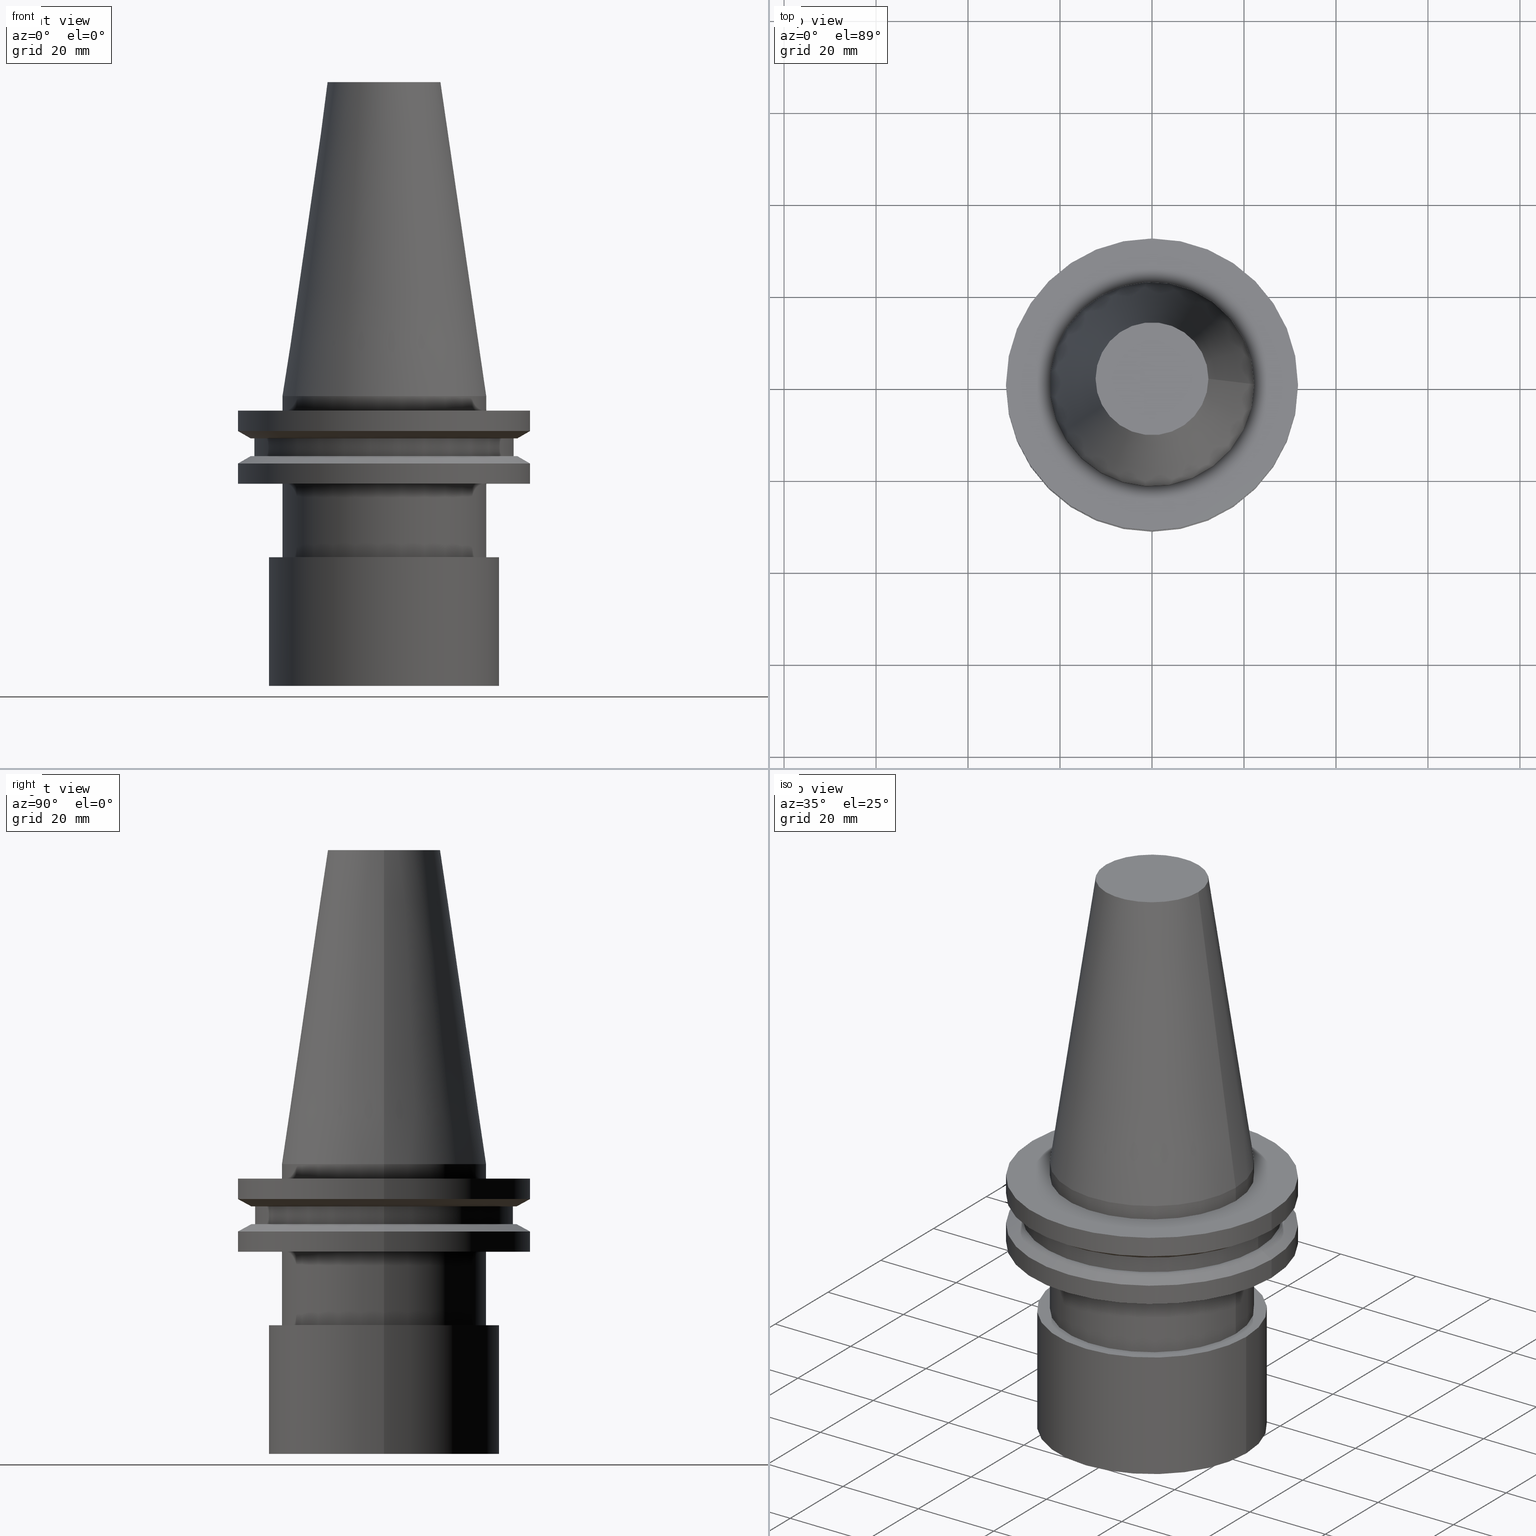
[diagram: canonical four-view strip — front | top / right | iso, engineering-drawing reading convention]
A machine part, canonical four-view strip (front | top / right | iso — engineering-drawing reading convention). The complete STEP part file that produces these views, byte-faithful:
ISO-10303-21;
HEADER;
FILE_DESCRIPTION (( 'STEP AP203' ),
    '1' );
FILE_NAME ('11_326_451.stp',
    '2022-03-09T14:21:47',
    ( '' ),
    ( '' ),
    'SwSTEP 2.0',
    'SolidWorks 2021',
    '' );
FILE_SCHEMA (( 'CONFIG_CONTROL_DESIGN' ));
ENDSEC;

DATA;
#1 = PLANE ( 'NONE',  #310 ) ;
#2 = CARTESIAN_POINT ( 'NONE',  ( 0.000000000000000000, 0.000000000000000000, -9.205000000000005400 ) ) ;
#3 =( NAMED_UNIT ( * ) PLANE_ANGLE_UNIT ( ) SI_UNIT ( $, .RADIAN. ) );
#4 = ADVANCED_FACE ( 'NONE', ( #382, #308 ), #211, .T. ) ;
#5 = CARTESIAN_POINT ( 'NONE',  ( 0.000000000000000000, 0.000000000000000000, 68.25000000000000000 ) ) ;
#6 = AXIS2_PLACEMENT_3D ( 'NONE', #240, #208, #359 ) ;
#7 = DATE_AND_TIME ( #388, #171 ) ;
#8 = DIRECTION ( 'NONE',  ( -0.000000000000000000, -0.000000000000000000, 1.000000000000000000 ) ) ;
#9 = EDGE_LOOP ( 'NONE', ( #45 ) ) ;
#10 = PERSON_AND_ORGANIZATION ( #97, #138 ) ;
#11 = ORIENTED_EDGE ( 'NONE', *, *, #318, .F. ) ;
#12 = APPROVAL ( #350, 'UNSPECIFIED' ) ;
#13 = APPROVAL_ROLE ( '' ) ;
#14 = AXIS2_PLACEMENT_3D ( 'NONE', #398, #372, #152 ) ;
#15 = ORIENTED_EDGE ( 'NONE', *, *, #36, .T. ) ;
#16 = PERSON_AND_ORGANIZATION ( #97, #138 ) ;
#17 = AXIS2_PLACEMENT_3D ( 'NONE', #366, #118, #220 ) ;
#18 = DIRECTION ( 'NONE',  ( -0.000000000000000000, -0.000000000000000000, 1.000000000000000000 ) ) ;
#19 = ADVANCED_FACE ( 'NONE', ( #28, #124 ), #35, .T. ) ;
#20 = FACE_OUTER_BOUND ( 'NONE', #70, .T. ) ;
#21 = AXIS2_PLACEMENT_3D ( 'NONE', #215, #157, #193 ) ;
#22 = CIRCLE ( 'NONE', #127, 28.97919780457007732 ) ;
#23 = CC_DESIGN_SECURITY_CLASSIFICATION ( #253, ( #114 ) ) ;
#24 = PLANE ( 'NONE',  #128 ) ;
#25 = EDGE_LOOP ( 'NONE', ( #351 ) ) ;
#26 = PRODUCT_DEFINITION_SHAPE ( 'NONE', 'NONE',  #191 ) ;
#27 = VERTEX_POINT ( 'NONE', #339 ) ;
#28 = FACE_OUTER_BOUND ( 'NONE', #321, .T. ) ;
#29 = ADVANCED_FACE ( 'NONE', ( #155 ), #160, .F. ) ;
#30 = FACE_OUTER_BOUND ( 'NONE', #234, .T. ) ;
#31 = CYLINDRICAL_SURFACE ( 'NONE', #260, 25.00000000000000000 ) ;
#32 = PRODUCT_RELATED_PRODUCT_CATEGORY ( 'detail', '', ( #356 ) ) ;
#33 = UNCERTAINTY_MEASURE_WITH_UNIT (LENGTH_MEASURE( 1.000000000000000082E-05 ), #104, 'distance_accuracy_value', 'NONE');
#34 = DIRECTION ( 'NONE',  ( 0.000000000000000000, 0.000000000000000000, -1.000000000000000000 ) ) ;
#35 = CYLINDRICAL_SURFACE ( 'NONE', #21, 28.17999999999999972 ) ;
#36 = EDGE_CURVE ( 'NONE', #241, #241, #22, .T. ) ;
#37 =( NAMED_UNIT ( * ) SI_UNIT ( $, .STERADIAN. ) SOLID_ANGLE_UNIT ( ) );
#38 = FACE_OUTER_BOUND ( 'NONE', #190, .T. ) ;
#39 = APPLICATION_PROTOCOL_DEFINITION ( 'international standard', 'config_control_design', 1994, #391 ) ;
#40 = DIRECTION ( 'NONE',  ( 0.000000000000000000, -0.000000000000000000, 1.000000000000000000 ) ) ;
#41 = EDGE_LOOP ( 'NONE', ( #323 ) ) ;
#42 = AXIS2_PLACEMENT_3D ( 'NONE', #146, #142, #265 ) ;
#43 = CARTESIAN_POINT ( 'NONE',  ( 22.22500000000000142, 0.000000000000000000, -3.174999999999997158 ) ) ;
#44 = DESIGN_CONTEXT ( 'detailed design', #338, 'design' ) ;
#45 = ORIENTED_EDGE ( 'NONE', *, *, #36, .F. ) ;
#46 = EDGE_LOOP ( 'NONE', ( #380 ) ) ;
#47 = EDGE_LOOP ( 'NONE', ( #11 ) ) ;
#48 = APPROVAL_DATE_TIME ( #176, #12 ) ;
#49 = CARTESIAN_POINT ( 'NONE',  ( 0.000000000000000000, 0.000000000000000000, -19.04999999999999716 ) ) ;
#50 = APPROVAL_PERSON_ORGANIZATION ( #10, #116, #13 ) ;
#51 = EDGE_CURVE ( 'NONE', #159, #159, #136, .T. ) ;
#52 = DIRECTION ( 'NONE',  ( 1.000000000000000000, 0.000000000000000000, 0.000000000000000000 ) ) ;
#53 = APPROVAL_DATE_TIME ( #207, #396 ) ;
#54 = PLANE ( 'NONE',  #110 ) ;
#55 = DIRECTION ( 'NONE',  ( -1.000000000000000000, 0.000000000000000000, -0.000000000000000000 ) ) ;
#56 = CARTESIAN_POINT ( 'NONE',  ( 28.97919780457008088, 0.000000000000000000, -13.05499999999999794 ) ) ;
#57 = FACE_BOUND ( 'NONE', #163, .T. ) ;
#58 = CARTESIAN_POINT ( 'NONE',  ( 25.00000000000000000, 0.000000000000000000, -35.04999999999999716 ) ) ;
#59 = CC_DESIGN_DATE_AND_TIME_ASSIGNMENT ( #332, #364, ( #253 ) ) ;
#60 = FACE_OUTER_BOUND ( 'NONE', #229, .T. ) ;
#61 = DIRECTION ( 'NONE',  ( 0.000000000000000000, 0.000000000000000000, -1.000000000000000000 ) ) ;
#62 = CARTESIAN_POINT ( 'NONE',  ( 0.000000000000000000, 28.97919780457007732, -9.204999999999996518 ) ) ;
#63 = ADVANCED_FACE ( 'NONE', ( #131, #57 ), #95, .F. ) ;
#64 = AXIS2_PLACEMENT_3D ( 'NONE', #297, #111, #172 ) ;
#65 = AXIS2_PLACEMENT_3D ( 'NONE', #275, #303, #341 ) ;
#66 = CARTESIAN_POINT ( 'NONE',  ( 0.000000000000000000, 0.000000000000000000, -35.04999999999999716 ) ) ;
#67 = CC_DESIGN_DATE_AND_TIME_ASSIGNMENT ( #7, #130, ( #191 ) ) ;
#68 = DIRECTION ( 'NONE',  ( 1.000000000000000000, 0.000000000000000000, 0.000000000000000000 ) ) ;
#69 = CARTESIAN_POINT ( 'NONE',  ( 0.000000000000000000, 0.000000000000000000, -13.05499999999999794 ) ) ;
#70 = EDGE_LOOP ( 'NONE', ( #201 ) ) ;
#71 = CARTESIAN_POINT ( 'NONE',  ( 28.17999999999999972, 0.000000000000000000, -13.05499999999999794 ) ) ;
#72 = AXIS2_PLACEMENT_3D ( 'NONE', #375, #280, #126 ) ;
#73 = CARTESIAN_POINT ( 'NONE',  ( 22.22500000000000142, 0.000000000000000000, 0.000000000000000000 ) ) ;
#74 = EDGE_LOOP ( 'NONE', ( #112 ) ) ;
#75 = ADVANCED_FACE ( 'NONE', ( #60, #119 ), #31, .T. ) ;
#76 = AXIS2_PLACEMENT_3D ( 'NONE', #2, #373, #226 ) ;
#77 = ADVANCED_BREP_SHAPE_REPRESENTATION ( '11_326_451', ( #214, #358, #231 ), #175 ) ;
#78 = AXIS2_PLACEMENT_3D ( 'NONE', #362, #18, #236 ) ;
#79 = DIRECTION ( 'NONE',  ( -0.000000000000000000, -0.000000000000000000, 1.000000000000000000 ) ) ;
#80 = CC_DESIGN_APPROVAL ( #396, ( #253 ) ) ;
#81 = CYLINDRICAL_SURFACE ( 'NONE', #98, 31.75000000000000000 ) ;
#82 = CIRCLE ( 'NONE', #401, 22.22500000000000142 ) ;
#83 = CALENDAR_DATE ( 2022, 9, 3 ) ;
#84 = FACE_OUTER_BOUND ( 'NONE', #301, .T. ) ;
#85 = SHAPE_DEFINITION_REPRESENTATION ( #26, #77 ) ;
#86 = CARTESIAN_POINT ( 'NONE',  ( 0.000000000000000000, 0.000000000000000000, 68.25000000000000000 ) ) ;
#87 = EDGE_CURVE ( 'NONE', #120, #120, #185, .T. ) ;
#88 = DIRECTION ( 'NONE',  ( -1.000000000000000000, 0.000000000000000000, -0.000000000000000000 ) ) ;
#89 = CIRCLE ( 'NONE', #145, 22.22500000000000142 ) ;
#90 = DIRECTION ( 'NONE',  ( -0.000000000000000000, -0.000000000000000000, 1.000000000000000000 ) ) ;
#91 = DIRECTION ( 'NONE',  ( -0.000000000000000000, -0.000000000000000000, 1.000000000000000000 ) ) ;
#92 = FACE_OUTER_BOUND ( 'NONE', #134, .T. ) ;
#93 = DIRECTION ( 'NONE',  ( -0.000000000000000000, -0.000000000000000000, 1.000000000000000000 ) ) ;
#94 = FACE_OUTER_BOUND ( 'NONE', #137, .T. ) ;
#95 = PLANE ( 'NONE',  #144 ) ;
#96 = CC_DESIGN_PERSON_AND_ORGANIZATION_ASSIGNMENT ( #264, #292, ( #114 ) ) ;
#97 = PERSON ( 'UNSPECIFIED', 'UNSPECIFIED', 'UNSPECIFIED', ('UNSPECIFIED'), ('UNSPECIFIED'), ('UNSPECIFIED') ) ;
#98 = AXIS2_PLACEMENT_3D ( 'NONE', #202, #330, #52 ) ;
#99 = DIRECTION ( 'NONE',  ( -0.000000000000000000, -0.000000000000000000, 1.000000000000000000 ) ) ;
#100 = ORIENTED_EDGE ( 'NONE', *, *, #327, .F. ) ;
#101 = CARTESIAN_POINT ( 'NONE',  ( 31.75000000000000000, 0.000000000000000000, -14.65472339340266572 ) ) ;
#102 = ORIENTED_EDGE ( 'NONE', *, *, #400, .T. ) ;
#103 = ADVANCED_FACE ( 'NONE', ( #277, #403 ), #219, .F. ) ;
#104 =( LENGTH_UNIT ( ) NAMED_UNIT ( * ) SI_UNIT ( .MILLI., .METRE. ) );
#105 = APPLICATION_PROTOCOL_DEFINITION ( 'international standard', 'config_control_design', 1994, #338 ) ;
#106 = ORIENTED_EDGE ( 'NONE', *, *, #150, .F. ) ;
#107 = ADVANCED_FACE ( 'NONE', ( #348, #311 ), #238, .T. ) ;
#108 = ORIENTED_EDGE ( 'NONE', *, *, #272, .F. ) ;
#109 = AXIS2_PLACEMENT_3D ( 'NONE', #346, #91, #217 ) ;
#110 = AXIS2_PLACEMENT_3D ( 'NONE', #184, #178, #55 ) ;
#111 = DIRECTION ( 'NONE',  ( -0.000000000000000000, -0.000000000000000000, 1.000000000000000000 ) ) ;
#112 = ORIENTED_EDGE ( 'NONE', *, *, #272, .T. ) ;
#113 = CIRCLE ( 'NONE', #335, 28.97919780457008088 ) ;
#114 = PRODUCT_DEFINITION_FORMATION_WITH_SPECIFIED_SOURCE ( 'ANY', '', #356, .NOT_KNOWN. ) ;
#115 = DIRECTION ( 'NONE',  ( -1.000000000000000000, 0.000000000000000000, -0.000000000000000000 ) ) ;
#116 = APPROVAL ( #312, 'UNSPECIFIED' ) ;
#117 = DIRECTION ( 'NONE',  ( -1.000000000000000000, 0.000000000000000000, -0.000000000000000000 ) ) ;
#118 = DIRECTION ( 'NONE',  ( -0.000000000000000000, -0.000000000000000000, 1.000000000000000000 ) ) ;
#119 = FACE_OUTER_BOUND ( 'NONE', #41, .T. ) ;
#120 = VERTEX_POINT ( 'NONE', #336 ) ;
#121 = ORIENTED_EDGE ( 'NONE', *, *, #318, .T. ) ;
#122 = VERTEX_POINT ( 'NONE', #56 ) ;
#123 = CC_DESIGN_PERSON_AND_ORGANIZATION_ASSIGNMENT ( #16, #300, ( #114 ) ) ;
#124 = FACE_OUTER_BOUND ( 'NONE', #74, .T. ) ;
#125 = CARTESIAN_POINT ( 'NONE',  ( 31.74999999999999289, 0.000000000000000000, -19.04999999999999716 ) ) ;
#126 = DIRECTION ( 'NONE',  ( -1.000000000000000000, 0.000000000000000000, 0.000000000000000000 ) ) ;
#127 = AXIS2_PLACEMENT_3D ( 'NONE', #246, #8, #337 ) ;
#128 = AXIS2_PLACEMENT_3D ( 'NONE', #156, #307, #117 ) ;
#129 = ORIENTED_EDGE ( 'NONE', *, *, #150, .T. ) ;
#130 = DATE_TIME_ROLE ( 'creation_date' ) ;
#131 = FACE_OUTER_BOUND ( 'NONE', #46, .T. ) ;
#132 = ORIENTED_EDGE ( 'NONE', *, *, #333, .T. ) ;
#133 = FACE_OUTER_BOUND ( 'NONE', #221, .T. ) ;
#134 = EDGE_LOOP ( 'NONE', ( #153 ) ) ;
#135 = VERTEX_POINT ( 'NONE', #259 ) ;
#136 = CIRCLE ( 'NONE', #363, 25.00000000000000000 ) ;
#137 = EDGE_LOOP ( 'NONE', ( #340 ) ) ;
#138 = ORGANIZATION ( 'UNSPECIFIED', 'UNSPECIFIED', '' ) ;
#139 = ADVANCED_FACE ( 'NONE', ( #313, #38 ), #282, .T. ) ;
#140 = ORIENTED_EDGE ( 'NONE', *, *, #327, .T. ) ;
#141 = SECURITY_CLASSIFICATION_LEVEL ( 'unclassified' ) ;
#142 = DIRECTION ( 'NONE',  ( -0.000000000000000000, -0.000000000000000000, 1.000000000000000000 ) ) ;
#143 = CYLINDRICAL_SURFACE ( 'NONE', #64, 22.22500000000000142 ) ;
#144 = AXIS2_PLACEMENT_3D ( 'NONE', #306, #274, #399 ) ;
#145 = AXIS2_PLACEMENT_3D ( 'NONE', #180, #397, #179 ) ;
#146 = CARTESIAN_POINT ( 'NONE',  ( 0.000000000000000000, 0.000000000000000000, 68.25000000000000000 ) ) ;
#147 = PERSON_AND_ORGANIZATION_ROLE ( 'classification_officer' ) ;
#148 = APPROVAL_ROLE ( '' ) ;
#149 = DIRECTION ( 'NONE',  ( 1.000000000000000000, 0.000000000000000000, 0.000000000000000000 ) ) ;
#150 = EDGE_CURVE ( 'NONE', #122, #122, #113, .T. ) ;
#151 = AXIS2_PLACEMENT_3D ( 'NONE', #247, #270, #115 ) ;
#152 = DIRECTION ( 'NONE',  ( 1.000000000000000000, 0.000000000000000000, 0.000000000000000000 ) ) ;
#153 = ORIENTED_EDGE ( 'NONE', *, *, #355, .T. ) ;
#154 = PLANE ( 'NONE',  #151 ) ;
#155 = FACE_OUTER_BOUND ( 'NONE', #291, .T. ) ;
#156 = CARTESIAN_POINT ( 'NONE',  ( 0.000000000000000000, 0.000000000000000000, -35.04999999999999716 ) ) ;
#157 = DIRECTION ( 'NONE',  ( -0.000000000000000000, -0.000000000000000000, 1.000000000000000000 ) ) ;
#158 = CC_DESIGN_APPROVAL ( #116, ( #191 ) ) ;
#159 = VERTEX_POINT ( 'NONE', #58 ) ;
#160 = PLANE ( 'NONE',  #243 ) ;
#161 = VERTEX_POINT ( 'NONE', #71 ) ;
#162 = DIRECTION ( 'NONE',  ( 1.000000000000000000, 0.000000000000000000, 0.000000000000000000 ) ) ;
#163 = EDGE_LOOP ( 'NONE', ( #121 ) ) ;
#164 = PERSON_AND_ORGANIZATION_ROLE ( 'creator' ) ;
#165 = ADVANCED_FACE ( 'NONE', ( #173, #133 ), #143, .T. ) ;
#166 = ORIENTED_EDGE ( 'NONE', *, *, #177, .T. ) ;
#167 = ORIENTED_EDGE ( 'NONE', *, *, #206, .F. ) ;
#168 = COORDINATED_UNIVERSAL_TIME_OFFSET ( 6, 0, .BEHIND. ) ;
#169 = VERTEX_POINT ( 'NONE', #197 ) ;
#170 = VERTEX_POINT ( 'NONE', #125 ) ;
#171 = LOCAL_TIME ( 8, 21, 47.00000000000000000, #263 ) ;
#172 = DIRECTION ( 'NONE',  ( 1.000000000000000000, 0.000000000000000000, 0.000000000000000000 ) ) ;
#173 = FACE_OUTER_BOUND ( 'NONE', #342, .T. ) ;
#174 = ORIENTED_EDGE ( 'NONE', *, *, #266, .T. ) ;
#175 =( GEOMETRIC_REPRESENTATION_CONTEXT ( 3 ) GLOBAL_UNCERTAINTY_ASSIGNED_CONTEXT ( ( #33 ) ) GLOBAL_UNIT_ASSIGNED_CONTEXT ( ( #104, #3, #37 ) ) REPRESENTATION_CONTEXT ( 'NONE', 'WORKASPACE' ) );
#176 = DATE_AND_TIME ( #287, #365 ) ;
#177 = EDGE_CURVE ( 'NONE', #27, #27, #328, .T. ) ;
#178 = DIRECTION ( 'NONE',  ( 0.000000000000000000, 0.000000000000000000, -1.000000000000000000 ) ) ;
#179 = DIRECTION ( 'NONE',  ( 1.000000000000000000, 0.000000000000000000, 0.000000000000000000 ) ) ;
#180 = CARTESIAN_POINT ( 'NONE',  ( 0.000000000000000000, 0.000000000000000000, 0.000000000000000000 ) ) ;
#181 = DIRECTION ( 'NONE',  ( 1.000000000000000000, 0.000000000000000000, 0.000000000000000000 ) ) ;
#182 = DIRECTION ( 'NONE',  ( -0.000000000000000000, -0.000000000000000000, 1.000000000000000000 ) ) ;
#183 = ADVANCED_FACE ( 'NONE', ( #205, #296 ), #81, .T. ) ;
#184 = CARTESIAN_POINT ( 'NONE',  ( 0.000000000000000000, 28.17999999999999972, -13.05499999999999794 ) ) ;
#185 = CIRCLE ( 'NONE', #109, 22.22500000000000142 ) ;
#186 = DIRECTION ( 'NONE',  ( 1.000000000000000000, 0.000000000000000000, 0.000000000000000000 ) ) ;
#187 = LOCAL_TIME ( 8, 21, 47.00000000000000000, #203 ) ;
#188 = PERSON_AND_ORGANIZATION_ROLE ( 'design_owner' ) ;
#189 = DIRECTION ( 'NONE',  ( 0.000000000000000000, -0.000000000000000000, 1.000000000000000000 ) ) ;
#190 = EDGE_LOOP ( 'NONE', ( #102 ) ) ;
#191 = PRODUCT_DEFINITION ( 'UNKNOWN', '', #114, #44 ) ;
#192 = MECHANICAL_CONTEXT ( 'NONE', #391, 'mechanical' ) ;
#193 = DIRECTION ( 'NONE',  ( 1.000000000000000000, 0.000000000000000000, 0.000000000000000000 ) ) ;
#194 = EDGE_LOOP ( 'NONE', ( #106 ) ) ;
#195 = AXIS2_PLACEMENT_3D ( 'NONE', #62, #189, #186 ) ;
#196 = EDGE_LOOP ( 'NONE', ( #227 ) ) ;
#197 = CARTESIAN_POINT ( 'NONE',  ( 25.00000000000000000, 0.000000000000000000, -63.00000000000000000 ) ) ;
#198 = EDGE_LOOP ( 'NONE', ( #132 ) ) ;
#199 = DIRECTION ( 'NONE',  ( 1.000000000000000000, 0.000000000000000000, 0.000000000000000000 ) ) ;
#200 = CLOSED_SHELL ( 'NONE', ( #107, #393, #278, #223, #63, #183, #385, #293, #19, #103, #4, #139, #390, #165 ) ) ;
#201 = ORIENTED_EDGE ( 'NONE', *, *, #51, .T. ) ;
#202 = CARTESIAN_POINT ( 'NONE',  ( 0.000000000000000000, 0.000000000000000000, 68.25000000000000000 ) ) ;
#203 = COORDINATED_UNIVERSAL_TIME_OFFSET ( 6, 0, .BEHIND. ) ;
#204 = CIRCLE ( 'NONE', #14, 28.17999999999999972 ) ;
#205 = FACE_OUTER_BOUND ( 'NONE', #283, .T. ) ;
#206 = EDGE_CURVE ( 'NONE', #374, #374, #352, .T. ) ;
#207 = DATE_AND_TIME ( #83, #222 ) ;
#208 = DIRECTION ( 'NONE',  ( -0.000000000000000000, -0.000000000000000000, 1.000000000000000000 ) ) ;
#209 = DIRECTION ( 'NONE',  ( -0.000000000000000000, -0.000000000000000000, 1.000000000000000000 ) ) ;
#210 = APPROVAL_STATUS ( 'not_yet_approved' ) ;
#211 = CONICAL_SURFACE ( 'NONE', #76, 28.97919780457007732, 1.047197551196598297 ) ;
#212 = CARTESIAN_POINT ( 'NONE',  ( 28.97919780457007732, 0.000000000000000000, -9.205000000000005400 ) ) ;
#213 = AXIS2_PLACEMENT_3D ( 'NONE', #86, #209, #149 ) ;
#214 = MANIFOLD_SOLID_BREP ( 'CV40', #200 ) ;
#215 = CARTESIAN_POINT ( 'NONE',  ( 0.000000000000000000, 0.000000000000000000, 68.25000000000000000 ) ) ;
#216 = DIRECTION ( 'NONE',  ( 0.000000000000000000, -0.000000000000000000, 1.000000000000000000 ) ) ;
#217 = DIRECTION ( 'NONE',  ( 1.000000000000000000, 0.000000000000000000, 0.000000000000000000 ) ) ;
#218 = CARTESIAN_POINT ( 'NONE',  ( 0.000000000000000000, 0.000000000000000000, -7.605276606597335842 ) ) ;
#219 = PLANE ( 'NONE',  #195 ) ;
#220 = DIRECTION ( 'NONE',  ( 1.000000000000000000, 0.000000000000000000, 0.000000000000000000 ) ) ;
#221 = EDGE_LOOP ( 'NONE', ( #295 ) ) ;
#222 = LOCAL_TIME ( 8, 21, 47.00000000000000000, #269 ) ;
#223 = ADVANCED_FACE ( 'NONE', ( #326, #84 ), #294, .T. ) ;
#224 = EDGE_LOOP ( 'NONE', ( #383 ) ) ;
#225 = VERTEX_POINT ( 'NONE', #73 ) ;
#226 = DIRECTION ( 'NONE',  ( 1.000000000000000000, 0.000000000000000000, 0.000000000000000000 ) ) ;
#227 = ORIENTED_EDGE ( 'NONE', *, *, #400, .F. ) ;
#228 = PERSON_AND_ORGANIZATION ( #97, #138 ) ;
#229 = EDGE_LOOP ( 'NONE', ( #262 ) ) ;
#230 = CARTESIAN_POINT ( 'NONE',  ( 0.000000000000000000, 0.000000000000000000, 0.000000000000000000 ) ) ;
#231 = AXIS2_PLACEMENT_3D ( 'NONE', #230, #384, #68 ) ;
#232 = ORIENTED_EDGE ( 'NONE', *, *, #333, .F. ) ;
#233 = DATE_AND_TIME ( #288, #276 ) ;
#234 = EDGE_LOOP ( 'NONE', ( #129 ) ) ;
#235 = EDGE_CURVE ( 'NONE', #169, #169, #251, .T. ) ;
#236 = DIRECTION ( 'NONE',  ( 1.000000000000000000, 0.000000000000000000, 0.000000000000000000 ) ) ;
#237 = PERSON_AND_ORGANIZATION ( #97, #138 ) ;
#238 = CONICAL_SURFACE ( 'NONE', #72, 22.22500000000000142, 0.1448138465474119174 ) ;
#239 = CIRCLE ( 'NONE', #285, 31.74999999999999289 ) ;
#240 = CARTESIAN_POINT ( 'NONE',  ( 0.000000000000000000, 0.000000000000000000, -3.174999999999997158 ) ) ;
#241 = VERTEX_POINT ( 'NONE', #212 ) ;
#242 = FACE_BOUND ( 'NONE', #353, .T. ) ;
#243 = AXIS2_PLACEMENT_3D ( 'NONE', #256, #40, #315 ) ;
#244 = CARTESIAN_POINT ( 'NONE',  ( 0.000000000000000000, 12.27178102086201150, 68.25000000000000000 ) ) ;
#245 = AXIS2_PLACEMENT_3D ( 'NONE', #244, #34, #88 ) ;
#246 = CARTESIAN_POINT ( 'NONE',  ( 0.000000000000000000, 0.000000000000000000, -9.205000000000005400 ) ) ;
#247 = CARTESIAN_POINT ( 'NONE',  ( 0.000000000000000000, 31.75000000000000000, -3.174999999999993605 ) ) ;
#248 = CARTESIAN_POINT ( 'NONE',  ( 0.000000000000000000, 0.000000000000000000, -19.04999999999999716 ) ) ;
#249 = EDGE_CURVE ( 'NONE', #170, #170, #239, .T. ) ;
#250 = DIRECTION ( 'NONE',  ( 1.000000000000000000, 0.000000000000000000, 0.000000000000000000 ) ) ;
#251 = CIRCLE ( 'NONE', #268, 25.00000000000000000 ) ;
#252 = DIRECTION ( 'NONE',  ( -0.000000000000000000, -0.000000000000000000, 1.000000000000000000 ) ) ;
#253 = SECURITY_CLASSIFICATION ( '', '', #141 ) ;
#254 = ORIENTED_EDGE ( 'NONE', *, *, #177, .F. ) ;
#255 = CARTESIAN_POINT ( 'NONE',  ( 12.27178102086201150, 0.000000000000000000, 68.25000000000000000 ) ) ;
#256 = CARTESIAN_POINT ( 'NONE',  ( 0.000000000000000000, 25.00000000000000000, -63.00000000000000000 ) ) ;
#257 = EDGE_LOOP ( 'NONE', ( #166 ) ) ;
#258 = EDGE_LOOP ( 'NONE', ( #174 ) ) ;
#259 = CARTESIAN_POINT ( 'NONE',  ( 31.75000000000000000, 0.000000000000000000, -7.605276606597335842 ) ) ;
#260 = AXIS2_PLACEMENT_3D ( 'NONE', #371, #93, #162 ) ;
#261 = AXIS2_PLACEMENT_3D ( 'NONE', #402, #61, #309 ) ;
#262 = ORIENTED_EDGE ( 'NONE', *, *, #51, .F. ) ;
#263 = COORDINATED_UNIVERSAL_TIME_OFFSET ( 6, 0, .BEHIND. ) ;
#264 = PERSON_AND_ORGANIZATION ( #97, #138 ) ;
#265 = DIRECTION ( 'NONE',  ( 1.000000000000000000, 0.000000000000000000, 0.000000000000000000 ) ) ;
#266 = EDGE_CURVE ( 'NONE', #281, #281, #319, .T. ) ;
#267 = CC_DESIGN_PERSON_AND_ORGANIZATION_ASSIGNMENT ( #237, #147, ( #253 ) ) ;
#268 = AXIS2_PLACEMENT_3D ( 'NONE', #389, #79, #325 ) ;
#269 = COORDINATED_UNIVERSAL_TIME_OFFSET ( 6, 0, .BEHIND. ) ;
#270 = DIRECTION ( 'NONE',  ( 0.000000000000000000, 0.000000000000000000, -1.000000000000000000 ) ) ;
#271 = FACE_BOUND ( 'NONE', #357, .T. ) ;
#272 = EDGE_CURVE ( 'NONE', #161, #161, #204, .T. ) ;
#273 = DIRECTION ( 'NONE',  ( 1.000000000000000000, 0.000000000000000000, 0.000000000000000000 ) ) ;
#274 = DIRECTION ( 'NONE',  ( 0.000000000000000000, -0.000000000000000000, 1.000000000000000000 ) ) ;
#275 = CARTESIAN_POINT ( 'NONE',  ( 0.000000000000000000, 0.000000000000000000, -3.174999999999997158 ) ) ;
#276 = LOCAL_TIME ( 8, 21, 47.00000000000000000, #381 ) ;
#277 = FACE_OUTER_BOUND ( 'NONE', #9, .T. ) ;
#278 = ADVANCED_FACE ( 'NONE', ( #94 ), #1, .F. ) ;
#279 = FACE_BOUND ( 'NONE', #194, .T. ) ;
#280 = DIRECTION ( 'NONE',  ( 0.000000000000000000, 0.000000000000000000, -1.000000000000000000 ) ) ;
#281 = VERTEX_POINT ( 'NONE', #255 ) ;
#282 = CYLINDRICAL_SURFACE ( 'NONE', #298, 31.75000000000000000 ) ;
#283 = EDGE_LOOP ( 'NONE', ( #100 ) ) ;
#284 = APPROVAL_DATE_TIME ( #233, #116 ) ;
#285 = AXIS2_PLACEMENT_3D ( 'NONE', #49, #392, #360 ) ;
#286 = ORIENTED_EDGE ( 'NONE', *, *, #87, .T. ) ;
#287 = CALENDAR_DATE ( 2022, 9, 3 ) ;
#288 = CALENDAR_DATE ( 2022, 9, 3 ) ;
#289 = ORIENTED_EDGE ( 'NONE', *, *, #266, .F. ) ;
#290 = PERSON_AND_ORGANIZATION ( #97, #138 ) ;
#291 = EDGE_LOOP ( 'NONE', ( #387 ) ) ;
#292 = PERSON_AND_ORGANIZATION_ROLE ( 'creator' ) ;
#293 = ADVANCED_FACE ( 'NONE', ( #271, #30 ), #54, .F. ) ;
#294 = CYLINDRICAL_SURFACE ( 'NONE', #42, 22.22500000000000142 ) ;
#295 = ORIENTED_EDGE ( 'NONE', *, *, #206, .T. ) ;
#296 = FACE_OUTER_BOUND ( 'NONE', #224, .T. ) ;
#297 = CARTESIAN_POINT ( 'NONE',  ( 0.000000000000000000, 0.000000000000000000, 68.25000000000000000 ) ) ;
#298 = AXIS2_PLACEMENT_3D ( 'NONE', #5, #252, #378 ) ;
#299 = CONICAL_SURFACE ( 'NONE', #261, 31.75000000000000000, 1.047197551196597853 ) ;
#300 = PERSON_AND_ORGANIZATION_ROLE ( 'design_supplier' ) ;
#301 = EDGE_LOOP ( 'NONE', ( #286 ) ) ;
#302 = DIRECTION ( 'NONE',  ( 1.000000000000000000, 0.000000000000000000, 0.000000000000000000 ) ) ;
#303 = DIRECTION ( 'NONE',  ( -0.000000000000000000, -0.000000000000000000, 1.000000000000000000 ) ) ;
#304 = CC_DESIGN_PERSON_AND_ORGANIZATION_ASSIGNMENT ( #314, #188, ( #356 ) ) ;
#305 = DIRECTION ( 'NONE',  ( -0.000000000000000000, -0.000000000000000000, 1.000000000000000000 ) ) ;
#306 = CARTESIAN_POINT ( 'NONE',  ( 0.000000000000000000, 31.74999999999999289, -19.04999999999999716 ) ) ;
#307 = DIRECTION ( 'NONE',  ( 0.000000000000000000, 0.000000000000000000, -1.000000000000000000 ) ) ;
#308 = FACE_BOUND ( 'NONE', #316, .T. ) ;
#309 = DIRECTION ( 'NONE',  ( -1.000000000000000000, 0.000000000000000000, 0.000000000000000000 ) ) ;
#310 = AXIS2_PLACEMENT_3D ( 'NONE', #370, #216, #302 ) ;
#311 = FACE_OUTER_BOUND ( 'NONE', #198, .T. ) ;
#312 = APPROVAL_STATUS ( 'not_yet_approved' ) ;
#313 = FACE_OUTER_BOUND ( 'NONE', #25, .T. ) ;
#314 = PERSON_AND_ORGANIZATION ( #97, #138 ) ;
#315 = DIRECTION ( 'NONE',  ( 1.000000000000000000, 0.000000000000000000, 0.000000000000000000 ) ) ;
#316 = EDGE_LOOP ( 'NONE', ( #15 ) ) ;
#317 = APPROVAL_ROLE ( '' ) ;
#318 = EDGE_CURVE ( 'NONE', #354, #354, #82, .T. ) ;
#319 = CIRCLE ( 'NONE', #213, 12.27178102086201150 ) ;
#320 = VERTEX_POINT ( 'NONE', #344 ) ;
#321 = EDGE_LOOP ( 'NONE', ( #254 ) ) ;
#322 = VERTEX_POINT ( 'NONE', #101 ) ;
#323 = ORIENTED_EDGE ( 'NONE', *, *, #235, .T. ) ;
#324 = CIRCLE ( 'NONE', #17, 31.75000000000000000 ) ;
#325 = DIRECTION ( 'NONE',  ( 1.000000000000000000, 0.000000000000000000, 0.000000000000000000 ) ) ;
#326 = FACE_OUTER_BOUND ( 'NONE', #47, .T. ) ;
#327 = EDGE_CURVE ( 'NONE', #322, #322, #324, .T. ) ;
#328 = CIRCLE ( 'NONE', #78, 28.17999999999999972 ) ;
#329 = AXIS2_PLACEMENT_3D ( 'NONE', #218, #90, #181 ) ;
#330 = DIRECTION ( 'NONE',  ( -0.000000000000000000, -0.000000000000000000, 1.000000000000000000 ) ) ;
#331 = EDGE_LOOP ( 'NONE', ( #140 ) ) ;
#332 = DATE_AND_TIME ( #361, #187 ) ;
#333 = EDGE_CURVE ( 'NONE', #225, #225, #89, .T. ) ;
#334 = FACE_OUTER_BOUND ( 'NONE', #331, .T. ) ;
#335 = AXIS2_PLACEMENT_3D ( 'NONE', #69, #99, #199 ) ;
#336 = CARTESIAN_POINT ( 'NONE',  ( 22.22500000000000142, 0.000000000000000000, -35.04999999999999716 ) ) ;
#337 = DIRECTION ( 'NONE',  ( 1.000000000000000000, 0.000000000000000000, 0.000000000000000000 ) ) ;
#338 = APPLICATION_CONTEXT ( 'configuration controlled 3d designs of mechanical parts and assemblies' ) ;
#339 = CARTESIAN_POINT ( 'NONE',  ( 28.17999999999999972, 0.000000000000000000, -9.204999999999991189 ) ) ;
#340 = ORIENTED_EDGE ( 'NONE', *, *, #87, .F. ) ;
#341 = DIRECTION ( 'NONE',  ( 1.000000000000000000, 0.000000000000000000, 0.000000000000000000 ) ) ;
#342 = EDGE_LOOP ( 'NONE', ( #232 ) ) ;
#343 = CLOSED_SHELL ( 'NONE', ( #349, #75, #29 ) ) ;
#344 = CARTESIAN_POINT ( 'NONE',  ( 31.75000000000000000, 0.000000000000000000, -3.174999999999997158 ) ) ;
#345 = CIRCLE ( 'NONE', #329, 31.75000000000000000 ) ;
#346 = CARTESIAN_POINT ( 'NONE',  ( 0.000000000000000000, 0.000000000000000000, -35.04999999999999716 ) ) ;
#347 = EDGE_LOOP ( 'NONE', ( #289 ) ) ;
#348 = FACE_BOUND ( 'NONE', #347, .T. ) ;
#349 = ADVANCED_FACE ( 'NONE', ( #20 ), #24, .F. ) ;
#350 = APPROVAL_STATUS ( 'not_yet_approved' ) ;
#351 = ORIENTED_EDGE ( 'NONE', *, *, #355, .F. ) ;
#352 = CIRCLE ( 'NONE', #6, 22.22500000000000142 ) ;
#353 = EDGE_LOOP ( 'NONE', ( #167 ) ) ;
#354 = VERTEX_POINT ( 'NONE', #376 ) ;
#355 = EDGE_CURVE ( 'NONE', #320, #320, #369, .T. ) ;
#356 = PRODUCT ( '11_326_451', '11_326_451', '', ( #192 ) ) ;
#357 = EDGE_LOOP ( 'NONE', ( #108 ) ) ;
#358 = MANIFOLD_SOLID_BREP ( 'CKB', #343 ) ;
#359 = DIRECTION ( 'NONE',  ( 1.000000000000000000, 0.000000000000000000, 0.000000000000000000 ) ) ;
#360 = DIRECTION ( 'NONE',  ( 1.000000000000000000, 0.000000000000000000, 0.000000000000000000 ) ) ;
#361 = CALENDAR_DATE ( 2022, 9, 3 ) ;
#362 = CARTESIAN_POINT ( 'NONE',  ( 0.000000000000000000, 0.000000000000000000, -9.204999999999991189 ) ) ;
#363 = AXIS2_PLACEMENT_3D ( 'NONE', #66, #182, #250 ) ;
#364 = DATE_TIME_ROLE ( 'classification_date' ) ;
#365 = LOCAL_TIME ( 8, 21, 47.00000000000000000, #168 ) ;
#366 = CARTESIAN_POINT ( 'NONE',  ( 0.000000000000000000, 0.000000000000000000, -14.65472339340266572 ) ) ;
#367 = PERSON_AND_ORGANIZATION ( #97, #138 ) ;
#368 = FACE_OUTER_BOUND ( 'NONE', #258, .T. ) ;
#369 = CIRCLE ( 'NONE', #65, 31.75000000000000000 ) ;
#370 = CARTESIAN_POINT ( 'NONE',  ( 0.000000000000000000, 22.22500000000000142, -35.04999999999999716 ) ) ;
#371 = CARTESIAN_POINT ( 'NONE',  ( 0.000000000000000000, 0.000000000000000000, 0.000000000000000000 ) ) ;
#372 = DIRECTION ( 'NONE',  ( -0.000000000000000000, -0.000000000000000000, 1.000000000000000000 ) ) ;
#373 = DIRECTION ( 'NONE',  ( -0.000000000000000000, -0.000000000000000000, 1.000000000000000000 ) ) ;
#374 = VERTEX_POINT ( 'NONE', #43 ) ;
#375 = CARTESIAN_POINT ( 'NONE',  ( 0.000000000000000000, 0.000000000000000000, 0.000000000000000000 ) ) ;
#376 = CARTESIAN_POINT ( 'NONE',  ( 22.22500000000000142, 0.000000000000000000, -19.04999999999999716 ) ) ;
#377 = CC_DESIGN_APPROVAL ( #12, ( #114 ) ) ;
#378 = DIRECTION ( 'NONE',  ( 1.000000000000000000, 0.000000000000000000, 0.000000000000000000 ) ) ;
#379 = CC_DESIGN_PERSON_AND_ORGANIZATION_ASSIGNMENT ( #290, #164, ( #191 ) ) ;
#380 = ORIENTED_EDGE ( 'NONE', *, *, #249, .F. ) ;
#381 = COORDINATED_UNIVERSAL_TIME_OFFSET ( 6, 0, .BEHIND. ) ;
#382 = FACE_OUTER_BOUND ( 'NONE', #196, .T. ) ;
#383 = ORIENTED_EDGE ( 'NONE', *, *, #249, .T. ) ;
#384 = DIRECTION ( 'NONE',  ( 0.000000000000000000, 0.000000000000000000, 1.000000000000000000 ) ) ;
#385 = ADVANCED_FACE ( 'NONE', ( #279, #334 ), #299, .T. ) ;
#386 = APPROVAL_PERSON_ORGANIZATION ( #228, #12, #317 ) ;
#387 = ORIENTED_EDGE ( 'NONE', *, *, #235, .F. ) ;
#388 = CALENDAR_DATE ( 2022, 9, 3 ) ;
#389 = CARTESIAN_POINT ( 'NONE',  ( 0.000000000000000000, 0.000000000000000000, -63.00000000000000000 ) ) ;
#390 = ADVANCED_FACE ( 'NONE', ( #242, #92 ), #154, .F. ) ;
#391 = APPLICATION_CONTEXT ( 'configuration controlled 3d designs of mechanical parts and assemblies' ) ;
#392 = DIRECTION ( 'NONE',  ( -0.000000000000000000, -0.000000000000000000, 1.000000000000000000 ) ) ;
#393 = ADVANCED_FACE ( 'NONE', ( #368 ), #395, .F. ) ;
#394 = APPROVAL_PERSON_ORGANIZATION ( #367, #396, #148 ) ;
#395 = PLANE ( 'NONE',  #245 ) ;
#396 = APPROVAL ( #210, 'UNSPECIFIED' ) ;
#397 = DIRECTION ( 'NONE',  ( -0.000000000000000000, -0.000000000000000000, 1.000000000000000000 ) ) ;
#398 = CARTESIAN_POINT ( 'NONE',  ( 0.000000000000000000, 0.000000000000000000, -13.05499999999999794 ) ) ;
#399 = DIRECTION ( 'NONE',  ( 1.000000000000000000, 0.000000000000000000, 0.000000000000000000 ) ) ;
#400 = EDGE_CURVE ( 'NONE', #135, #135, #345, .T. ) ;
#401 = AXIS2_PLACEMENT_3D ( 'NONE', #248, #305, #273 ) ;
#402 = CARTESIAN_POINT ( 'NONE',  ( 0.000000000000000000, 0.000000000000000000, -14.65472339340266572 ) ) ;
#403 = FACE_BOUND ( 'NONE', #257, .T. ) ;
ENDSEC;
END-ISO-10303-21;
